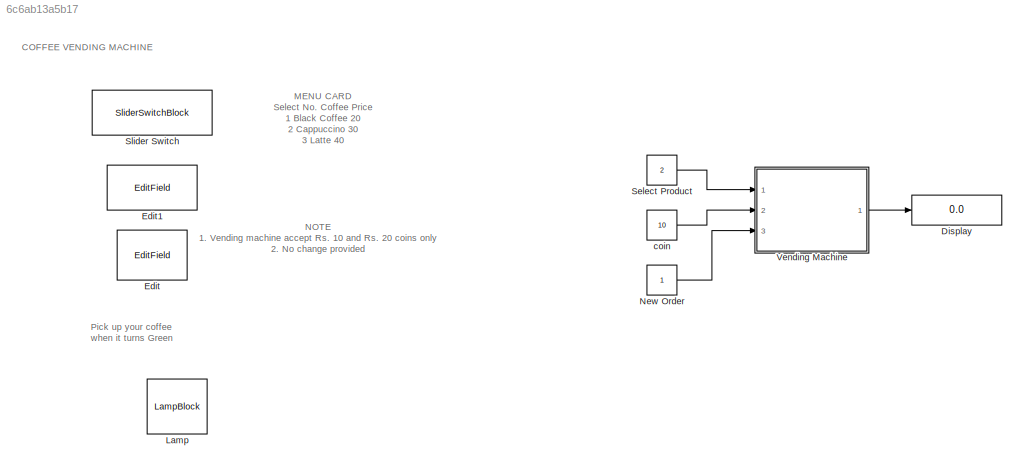
MODEL slx_6c6ab13a5b17
KIND model
CONFIG AbsTol = auto
CONFIG EnableMultiTasking = off
CONFIG FixedStep = auto
CONFIG MaxStep = auto
CONFIG MinStep = auto
CONFIG RelTol = 1e-3
CONFIG SampleTimeConstraint = Unconstrained
CONFIG Solver = VariableStepAuto
CONFIG SolverName = VariableStepAuto
CONFIG StartTime = 0.0
CONFIG StopTime = 10.0
BLOCK [Display] Display
  Decimation = 1
  Ports = [1]
BLOCK [EditField] Edit
  Alignment = Center
  ShowInitialText = on
BLOCK [EditField] Edit1
  Alignment = Center
  ShowInitialText = on
BLOCK [LampBlock] Lamp
BLOCK [Constant] New Order
BLOCK [Constant] Select Product
  Value = 2
BLOCK [SliderSwitchBlock] Slider Switch
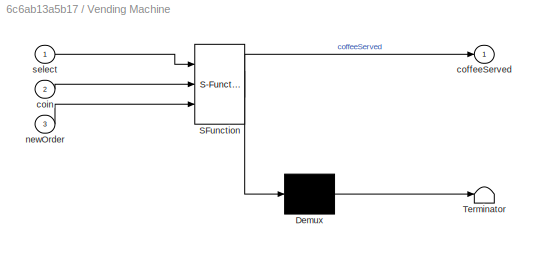
BLOCK [SubSystem] Vending Machine
  ErrorFcn = Stateflow.Translate.translate
  PermitHierarchicalResolution = ExplicitOnly
  Ports = [3, 1]
  RequestExecContextInheritance = off
  SFBlockType = Chart
  TreatAsAtomicUnit = on
BLOCK [Demux] Vending Machine/ Demux 
  Outputs = 1
  Ports = [1, 1]
BLOCK [S-Function] Vending Machine/ SFunction 
  EnableBusSupport = on
  FunctionName = sf_sfun
  PortCounts = [3 2]
  Ports = [3, 2]
  SFcnIsStateOwnerBlock = off
  SFunctionDeploymentMode = off
  Tag = Stateflow S-Function 3
BLOCK [Terminator] Vending Machine/ Terminator 
BLOCK [Outport] Vending Machine/coffeeServed
BLOCK [Inport] Vending Machine/coin
  Port = 2
BLOCK [Inport] Vending Machine/newOrder
  Port = 3
BLOCK [Inport] Vending Machine/select
BLOCK [Constant] coin
  Value = 10
ANNOTATION (root): MENU CARD Select No. Coffee Price 1 Black Coffee 20 2 Cappuccino 30 3 Latte 40
ANNOTATION (root): NOTE 1. Vending machine accept Rs. 10 and Rs. 20 coins only 2. No change provided
ANNOTATION (root): COFFEE VENDING MACHINE
ANNOTATION (root): Pick up your coffee when it turns Green
LINE New Order:1 -> Vending Machine:3
LINE Select Product:1 -> Vending Machine:1
LINE Vending Machine:1 -> Display:1
LINE coin:1 -> Vending Machine:2
CHART Vending Machine states=16 transitions=30
  STATE_LABEL 'Start'
  STATE_LABEL 'SelectCoffee'
  STATE_LABEL 'WaitForMoney_1'
  STATE_LABEL 'Rupee10_1'
  STATE_LABEL 'Rupee20_1'
  STATE_LABEL 'Preparing'
  STATE_LABEL 'Served'
  STATE_LABEL 'Rupee10_2'
  STATE_LABEL 'Rupee30_2'
  STATE_LABEL 'WaitForMoney_2'
  STATE_LABEL 'Rupee20_2'
  STATE_LABEL 'Rupee40_3'
  STATE_LABEL 'Rupee10_3'
  STATE_LABEL 'Rupee30_3'
  STATE_LABEL 'WaitForMoney_3'
  STATE_LABEL 'Rupee20_3'
CHART  states=0 transitions=0
